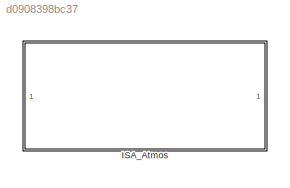
MODEL slx_d0908398bc37
KIND model
CONFIG AbsTol = auto
CONFIG EnableMultiTasking = off
CONFIG FixedStep = auto
CONFIG MaxStep = auto
CONFIG MinStep = auto
CONFIG RelTol = 1e-3
CONFIG SampleTimeConstraint = Unconstrained
CONFIG SolverName = VariableStepAuto
CONFIG StartTime = 0.0
CONFIG StopTime = 10.0
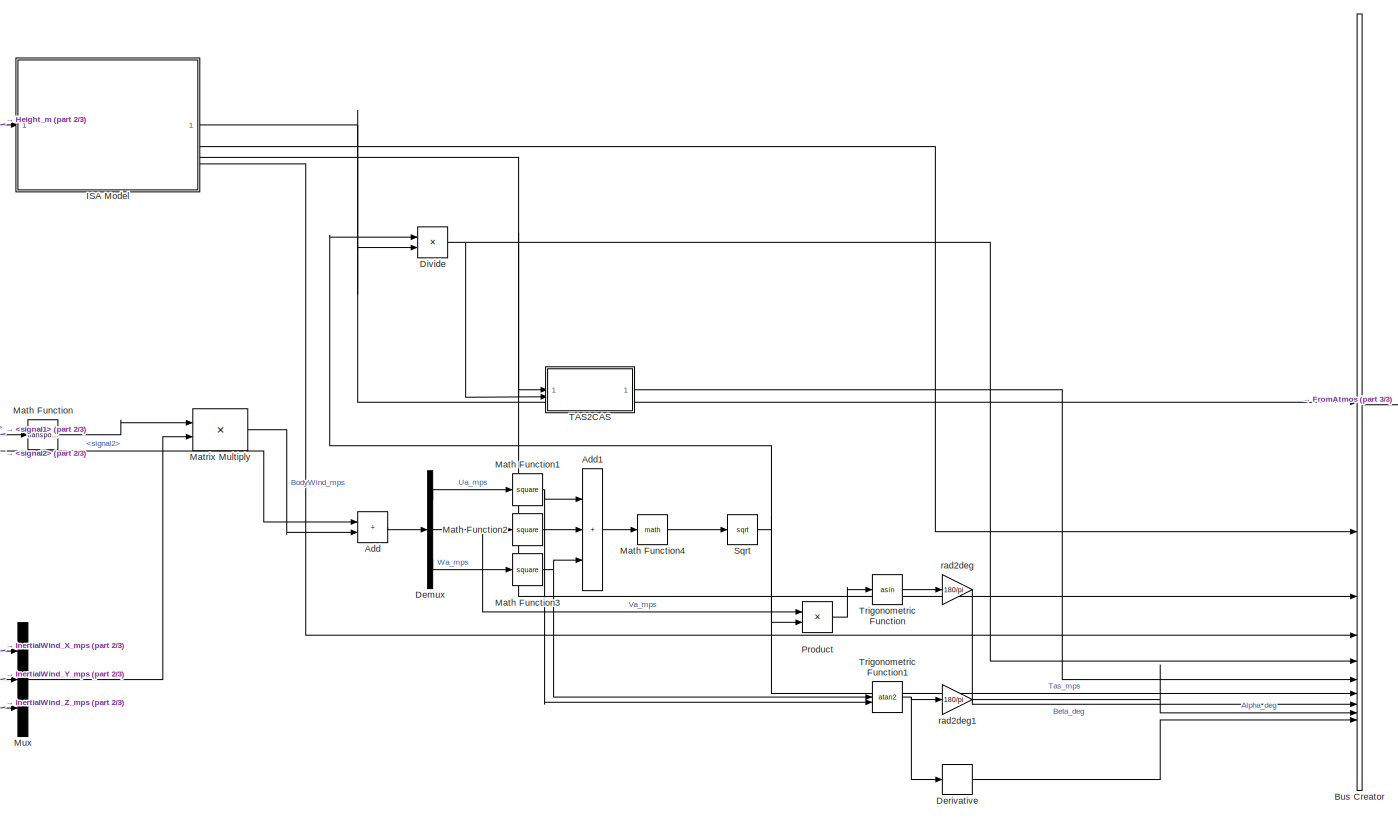
[diagram: ISA_Atmos - part 1/3, most of the canvas]
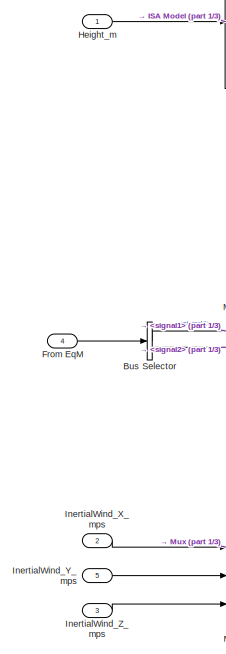
[diagram: ISA_Atmos - part 2/3, left side, full height]
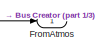
[diagram: ISA_Atmos - part 3/3, middle right region]
BLOCK [SubSystem] ISA_Atmos
BLOCK [Sum] ISA_Atmos/Add
  IconShape = rectangular
BLOCK [Sum] ISA_Atmos/Add1
  IconShape = rectangular
  Inputs = +++
BLOCK [BusCreator] ISA_Atmos/Bus Creator
  DisplayOption = bar
  InheritFromInputs = on
  Inputs = 10
BLOCK [BusSelector] ISA_Atmos/Bus Selector
  OutputSignals = signal1,signal2
BLOCK [Demux] ISA_Atmos/Demux
  Outputs = 3
BLOCK [Derivative] ISA_Atmos/Derivative
BLOCK [Product] ISA_Atmos/Divide
  Inputs = */
BLOCK [Inport] ISA_Atmos/From EqM
  Port = 4
BLOCK [Outport] ISA_Atmos/FromAtmos
BLOCK [Inport] ISA_Atmos/Height_m
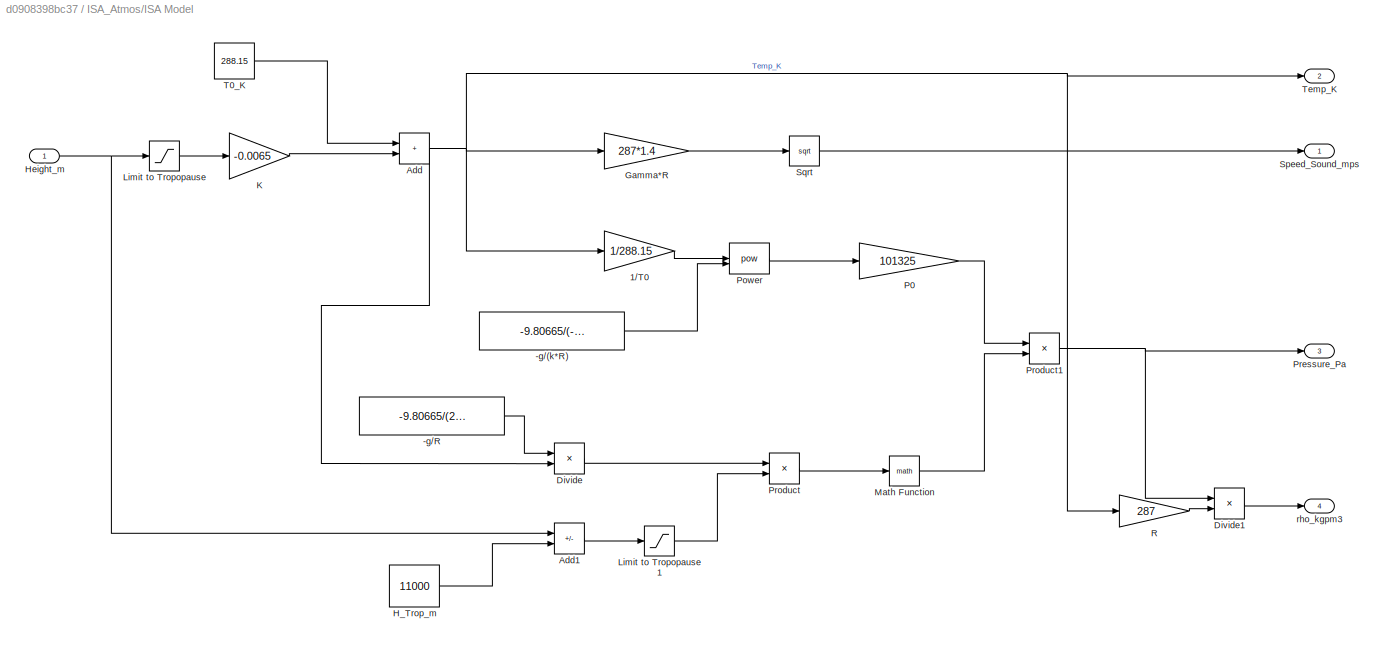
BLOCK [SubSystem] ISA_Atmos/ISA Model
BLOCK [Constant] ISA_Atmos/ISA Model/-g//(k*R)
  Value = -9.80665/(-0.0065*287)
BLOCK [Constant] ISA_Atmos/ISA Model/-g//R
  Value = -9.80665/(287)
BLOCK [Gain] ISA_Atmos/ISA Model/1//T0
  Gain = 1/288.15
  NameLocation = right
BLOCK [Sum] ISA_Atmos/ISA Model/Add
  IconShape = rectangular
BLOCK [Sum] ISA_Atmos/ISA Model/Add1
  IconShape = rectangular
  Inputs = +-
BLOCK [Product] ISA_Atmos/ISA Model/Divide
  Inputs = */
BLOCK [Product] ISA_Atmos/ISA Model/Divide1
  Inputs = */
BLOCK [Gain] ISA_Atmos/ISA Model/Gamma*R
  Gain = 287*1.4
BLOCK [Constant] ISA_Atmos/ISA Model/H_Trop_m
  Value = 11000
BLOCK [Inport] ISA_Atmos/ISA Model/Height_m
BLOCK [Gain] ISA_Atmos/ISA Model/K
  Gain = -0.0065
BLOCK [Saturate] ISA_Atmos/ISA Model/Limit to Tropopause
  LowerLimit = 0
  UpperLimit = 11000
BLOCK [Saturate] ISA_Atmos/ISA Model/Limit to Tropopause1
  LowerLimit = 0
  UpperLimit = inf
BLOCK [Math] ISA_Atmos/ISA Model/Math Function
BLOCK [Gain] ISA_Atmos/ISA Model/P0
  Gain = 101325
BLOCK [Math] ISA_Atmos/ISA Model/Power
  Operator = pow
BLOCK [Outport] ISA_Atmos/ISA Model/Pressure_Pa
  Port = 3
BLOCK [Product] ISA_Atmos/ISA Model/Product
BLOCK [Product] ISA_Atmos/ISA Model/Product1
BLOCK [Gain] ISA_Atmos/ISA Model/R
  Gain = 287
BLOCK [Outport] ISA_Atmos/ISA Model/Speed_Sound_mps
BLOCK [Sqrt] ISA_Atmos/ISA Model/Sqrt
BLOCK [Constant] ISA_Atmos/ISA Model/T0_K
  Value = 288.15
BLOCK [Outport] ISA_Atmos/ISA Model/Temp_K
  Port = 2
BLOCK [Outport] ISA_Atmos/ISA Model/rho_kgpm3
  Port = 4
BLOCK [Inport] ISA_Atmos/InertialWind_X_mps
  Port = 2
BLOCK [Inport] ISA_Atmos/InertialWind_Y_mps
  Port = 5
BLOCK [Inport] ISA_Atmos/InertialWind_Z_mps
  Port = 3
BLOCK [Math] ISA_Atmos/Math Function
  Operator = transpose
BLOCK [Math] ISA_Atmos/Math Function1
  Operator = square
BLOCK [Math] ISA_Atmos/Math Function2
  Operator = square
BLOCK [Math] ISA_Atmos/Math Function3
  Operator = square
BLOCK [Math] ISA_Atmos/Math Function4
BLOCK [Product] ISA_Atmos/Matrix Multiply
  Multiplication = Matrix(*)
BLOCK [Mux] ISA_Atmos/Mux
  DisplayOption = bar
  Inputs = 3
BLOCK [Product] ISA_Atmos/Product
  Inputs = */
BLOCK [Sqrt] ISA_Atmos/Sqrt
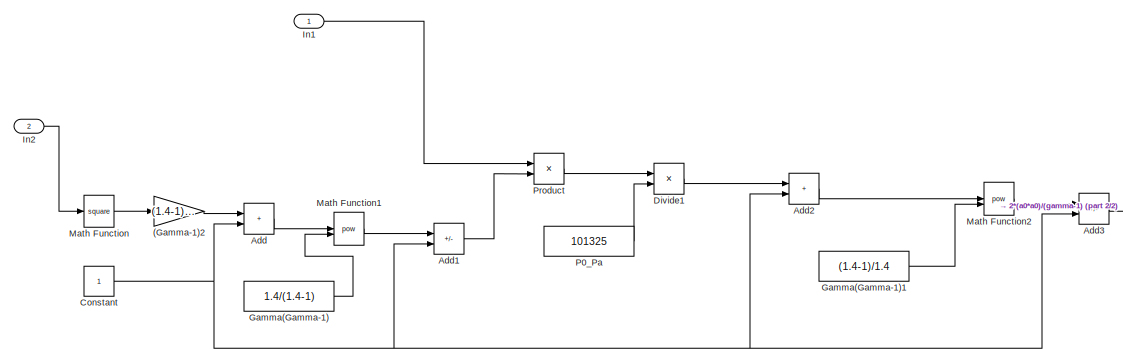
[diagram: ISA_Atmos/TAS2CAS - part 1/2, left side, full height]
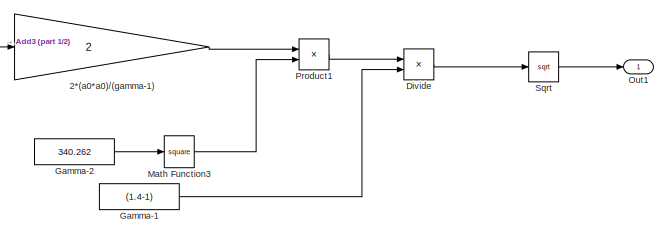
[diagram: ISA_Atmos/TAS2CAS - part 2/2, bottom right region]
BLOCK [SubSystem] ISA_Atmos/TAS2CAS
BLOCK [Gain] ISA_Atmos/TAS2CAS/(Gamma-1)2
  Gain = (1.4-1)/2
BLOCK [Gain] ISA_Atmos/TAS2CAS/2*(a0*a0)//(gamma-1)
  Gain = 2
BLOCK [Sum] ISA_Atmos/TAS2CAS/Add
  IconShape = rectangular
BLOCK [Sum] ISA_Atmos/TAS2CAS/Add1
  IconShape = rectangular
  Inputs = +-
BLOCK [Sum] ISA_Atmos/TAS2CAS/Add2
  IconShape = rectangular
BLOCK [Sum] ISA_Atmos/TAS2CAS/Add3
  IconShape = rectangular
  Inputs = +-
BLOCK [Constant] ISA_Atmos/TAS2CAS/Constant
BLOCK [Product] ISA_Atmos/TAS2CAS/Divide
  Inputs = */
BLOCK [Product] ISA_Atmos/TAS2CAS/Divide1
  Inputs = */
BLOCK [Constant] ISA_Atmos/TAS2CAS/Gamma(Gamma-1)
  Value = 1.4/(1.4-1)
BLOCK [Constant] ISA_Atmos/TAS2CAS/Gamma(Gamma-1)1
  Value = (1.4-1)/1.4
BLOCK [Constant] ISA_Atmos/TAS2CAS/Gamma-1
  Value = (1.4-1)
BLOCK [Constant] ISA_Atmos/TAS2CAS/Gamma-2
  Value = 340.262
BLOCK [Inport] ISA_Atmos/TAS2CAS/In1
BLOCK [Inport] ISA_Atmos/TAS2CAS/In2
  Port = 2
BLOCK [Math] ISA_Atmos/TAS2CAS/Math Function
  Operator = square
BLOCK [Math] ISA_Atmos/TAS2CAS/Math Function1
  Operator = pow
BLOCK [Math] ISA_Atmos/TAS2CAS/Math Function2
  Operator = pow
BLOCK [Math] ISA_Atmos/TAS2CAS/Math Function3
  Operator = square
BLOCK [Outport] ISA_Atmos/TAS2CAS/Out1
BLOCK [Constant] ISA_Atmos/TAS2CAS/P0_Pa
  Value = 101325
BLOCK [Product] ISA_Atmos/TAS2CAS/Product
BLOCK [Product] ISA_Atmos/TAS2CAS/Product1
BLOCK [Sqrt] ISA_Atmos/TAS2CAS/Sqrt
BLOCK [Trigonometry] ISA_Atmos/Trigonometric Function
  Operator = asin
BLOCK [Trigonometry] ISA_Atmos/Trigonometric Function1
  Operator = atan2
BLOCK [Gain] ISA_Atmos/rad2deg
  Gain = 180/pi
BLOCK [Gain] ISA_Atmos/rad2deg1
  Gain = 180/pi
LINE ISA_Atmos/Add1:1 -> ISA_Atmos/Math Function4:1
LINE ISA_Atmos/Add:1 -> ISA_Atmos/Demux:1
LINE ISA_Atmos/Bus Creator:1 -> ISA_Atmos/FromAtmos:1
LINE ISA_Atmos/Bus Selector:1 -> ISA_Atmos/Math Function:1
LINE ISA_Atmos/Bus Selector:2 -> ISA_Atmos/Add:1
LINE ISA_Atmos/Demux:1 -> ISA_Atmos/Math Function1:1
NET ISA_Atmos/Demux:2 -> ISA_Atmos/Math Function2:1, ISA_Atmos/Product:1
LINE ISA_Atmos/Demux:3 -> ISA_Atmos/Math Function3:1
LINE ISA_Atmos/Derivative:1 -> ISA_Atmos/Bus Creator:10
NET ISA_Atmos/Divide:1 -> ISA_Atmos/Bus Creator:5, ISA_Atmos/TAS2CAS:2
LINE ISA_Atmos/From EqM:1 -> ISA_Atmos/Bus Selector:1
LINE ISA_Atmos/Height_m:1 -> ISA_Atmos/ISA Model:1
LINE ISA_Atmos/ISA Model/-g//(k*R):1 -> ISA_Atmos/ISA Model/Power:2
LINE ISA_Atmos/ISA Model/-g//R:1 -> ISA_Atmos/ISA Model/Divide:1
LINE ISA_Atmos/ISA Model/1//T0:1 -> ISA_Atmos/ISA Model/Power:1
LINE ISA_Atmos/ISA Model/Add1:1 -> ISA_Atmos/ISA Model/Limit to Tropopause1:1
NET ISA_Atmos/ISA Model/Add:1 -> ISA_Atmos/ISA Model/1//T0:1, ISA_Atmos/ISA Model/Divide:2, ISA_Atmos/ISA Model/Gamma*R:1, ISA_Atmos/ISA Model/R:1, ISA_Atmos/ISA Model/Temp_K:1
LINE ISA_Atmos/ISA Model/Divide1:1 -> ISA_Atmos/ISA Model/rho_kgpm3:1
LINE ISA_Atmos/ISA Model/Divide:1 -> ISA_Atmos/ISA Model/Product:1
LINE ISA_Atmos/ISA Model/Gamma*R:1 -> ISA_Atmos/ISA Model/Sqrt:1
LINE ISA_Atmos/ISA Model/H_Trop_m:1 -> ISA_Atmos/ISA Model/Add1:2
NET ISA_Atmos/ISA Model/Height_m:1 -> ISA_Atmos/ISA Model/Add1:1, ISA_Atmos/ISA Model/Limit to Tropopause:1
LINE ISA_Atmos/ISA Model/K:1 -> ISA_Atmos/ISA Model/Add:2
LINE ISA_Atmos/ISA Model/Limit to Tropopause1:1 -> ISA_Atmos/ISA Model/Product:2
LINE ISA_Atmos/ISA Model/Limit to Tropopause:1 -> ISA_Atmos/ISA Model/K:1
LINE ISA_Atmos/ISA Model/Math Function:1 -> ISA_Atmos/ISA Model/Product1:2
LINE ISA_Atmos/ISA Model/P0:1 -> ISA_Atmos/ISA Model/Product1:1
LINE ISA_Atmos/ISA Model/Power:1 -> ISA_Atmos/ISA Model/P0:1
NET ISA_Atmos/ISA Model/Product1:1 -> ISA_Atmos/ISA Model/Divide1:1, ISA_Atmos/ISA Model/Pressure_Pa:1
LINE ISA_Atmos/ISA Model/Product:1 -> ISA_Atmos/ISA Model/Math Function:1
LINE ISA_Atmos/ISA Model/R:1 -> ISA_Atmos/ISA Model/Divide1:2
LINE ISA_Atmos/ISA Model/Sqrt:1 -> ISA_Atmos/ISA Model/Speed_Sound_mps:1
LINE ISA_Atmos/ISA Model/T0_K:1 -> ISA_Atmos/ISA Model/Add:1
NET ISA_Atmos/ISA Model:1 -> ISA_Atmos/Bus Creator:1, ISA_Atmos/Divide:2
LINE ISA_Atmos/ISA Model:2 -> ISA_Atmos/Bus Creator:2
NET ISA_Atmos/ISA Model:3 -> ISA_Atmos/Bus Creator:3, ISA_Atmos/TAS2CAS:1
LINE ISA_Atmos/ISA Model:4 -> ISA_Atmos/Bus Creator:4
LINE ISA_Atmos/InertialWind_X_mps:1 -> ISA_Atmos/Mux:1
LINE ISA_Atmos/InertialWind_Y_mps:1 -> ISA_Atmos/Mux:2
LINE ISA_Atmos/InertialWind_Z_mps:1 -> ISA_Atmos/Mux:3
NET ISA_Atmos/Math Function1:1 -> ISA_Atmos/Add1:1, ISA_Atmos/Trigonometric Function1:2
LINE ISA_Atmos/Math Function2:1 -> ISA_Atmos/Add1:2
NET ISA_Atmos/Math Function3:1 -> ISA_Atmos/Add1:3, ISA_Atmos/Trigonometric Function1:1
LINE ISA_Atmos/Math Function4:1 -> ISA_Atmos/Sqrt:1
LINE ISA_Atmos/Math Function:1 -> ISA_Atmos/Matrix Multiply:1
LINE ISA_Atmos/Matrix Multiply:1 -> ISA_Atmos/Add:2
LINE ISA_Atmos/Mux:1 -> ISA_Atmos/Matrix Multiply:2
LINE ISA_Atmos/Product:1 -> ISA_Atmos/Trigonometric Function:1
NET ISA_Atmos/Sqrt:1 -> ISA_Atmos/Bus Creator:7, ISA_Atmos/Divide:1, ISA_Atmos/Product:2
LINE ISA_Atmos/TAS2CAS/(Gamma-1)2:1 -> ISA_Atmos/TAS2CAS/Add:1
LINE ISA_Atmos/TAS2CAS/2*(a0*a0)//(gamma-1):1 -> ISA_Atmos/TAS2CAS/Product1:1
LINE ISA_Atmos/TAS2CAS/Add1:1 -> ISA_Atmos/TAS2CAS/Product:2
LINE ISA_Atmos/TAS2CAS/Add2:1 -> ISA_Atmos/TAS2CAS/Math Function2:1
LINE ISA_Atmos/TAS2CAS/Add3:1 -> ISA_Atmos/TAS2CAS/2*(a0*a0)//(gamma-1):1
LINE ISA_Atmos/TAS2CAS/Add:1 -> ISA_Atmos/TAS2CAS/Math Function1:1
NET ISA_Atmos/TAS2CAS/Constant:1 -> ISA_Atmos/TAS2CAS/Add1:2, ISA_Atmos/TAS2CAS/Add2:2, ISA_Atmos/TAS2CAS/Add3:2, ISA_Atmos/TAS2CAS/Add:2
LINE ISA_Atmos/TAS2CAS/Divide1:1 -> ISA_Atmos/TAS2CAS/Add2:1
LINE ISA_Atmos/TAS2CAS/Divide:1 -> ISA_Atmos/TAS2CAS/Sqrt:1
LINE ISA_Atmos/TAS2CAS/Gamma(Gamma-1)1:1 -> ISA_Atmos/TAS2CAS/Math Function2:2
LINE ISA_Atmos/TAS2CAS/Gamma(Gamma-1):1 -> ISA_Atmos/TAS2CAS/Math Function1:2
LINE ISA_Atmos/TAS2CAS/Gamma-1:1 -> ISA_Atmos/TAS2CAS/Divide:2
LINE ISA_Atmos/TAS2CAS/Gamma-2:1 -> ISA_Atmos/TAS2CAS/Math Function3:1
LINE ISA_Atmos/TAS2CAS/In1:1 -> ISA_Atmos/TAS2CAS/Product:1
LINE ISA_Atmos/TAS2CAS/In2:1 -> ISA_Atmos/TAS2CAS/Math Function:1
LINE ISA_Atmos/TAS2CAS/Math Function1:1 -> ISA_Atmos/TAS2CAS/Add1:1
LINE ISA_Atmos/TAS2CAS/Math Function2:1 -> ISA_Atmos/TAS2CAS/Add3:1
LINE ISA_Atmos/TAS2CAS/Math Function3:1 -> ISA_Atmos/TAS2CAS/Product1:2
LINE ISA_Atmos/TAS2CAS/Math Function:1 -> ISA_Atmos/TAS2CAS/(Gamma-1)2:1
LINE ISA_Atmos/TAS2CAS/P0_Pa:1 -> ISA_Atmos/TAS2CAS/Divide1:2
LINE ISA_Atmos/TAS2CAS/Product1:1 -> ISA_Atmos/TAS2CAS/Divide:1
LINE ISA_Atmos/TAS2CAS/Product:1 -> ISA_Atmos/TAS2CAS/Divide1:1
LINE ISA_Atmos/TAS2CAS/Sqrt:1 -> ISA_Atmos/TAS2CAS/Out1:1
LINE ISA_Atmos/TAS2CAS:1 -> ISA_Atmos/Bus Creator:6
NET ISA_Atmos/Trigonometric Function1:1 -> ISA_Atmos/Derivative:1, ISA_Atmos/rad2deg1:1
LINE ISA_Atmos/Trigonometric Function:1 -> ISA_Atmos/rad2deg:1
LINE ISA_Atmos/rad2deg1:1 -> ISA_Atmos/Bus Creator:9
LINE ISA_Atmos/rad2deg:1 -> ISA_Atmos/Bus Creator:8
note: NET lines group one-source signal fan-out (src -> all destinations, sorted); 1:1 wires keep LINE
